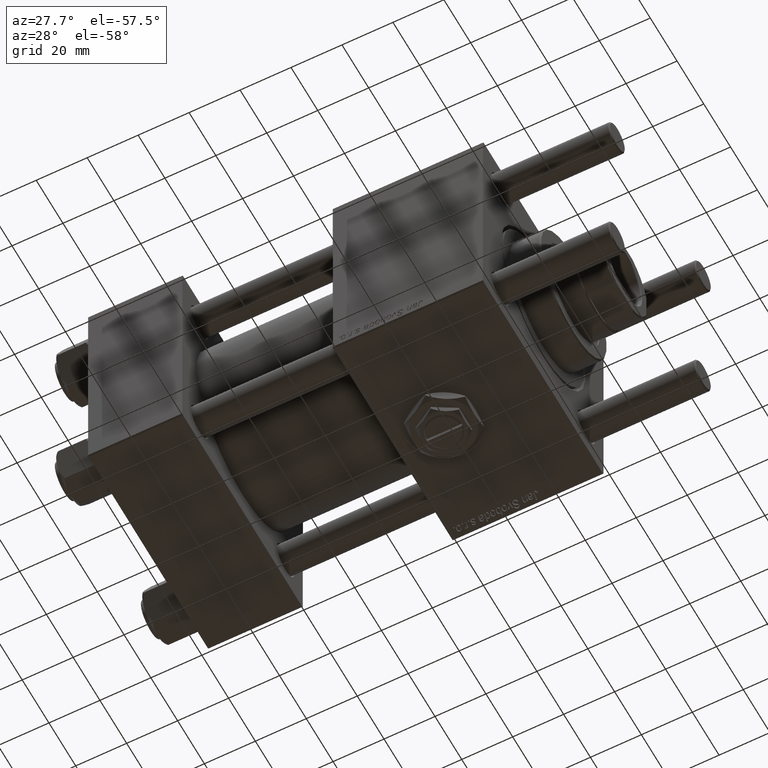
[diagram: clean part render]
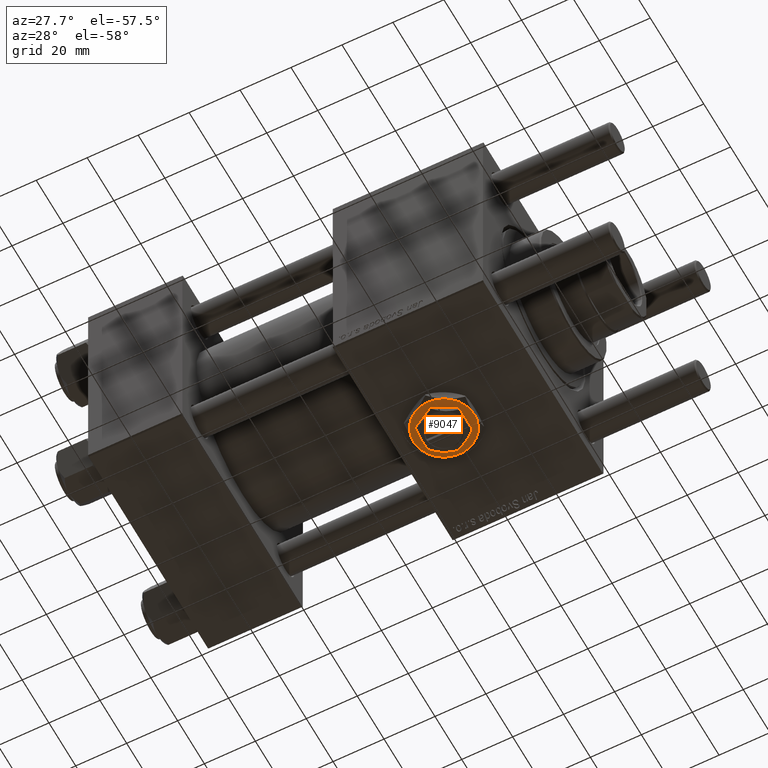
[diagram: same view with one face highlighted and labeled with its STEP entity id]
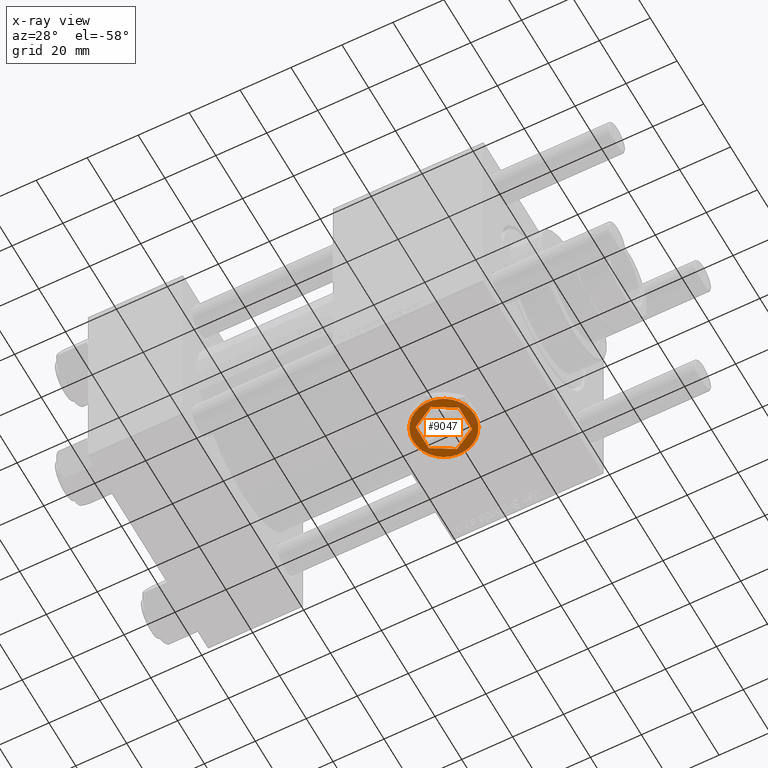
[diagram: x-ray of the same camera — body ghosted, the highlighted face saturated]
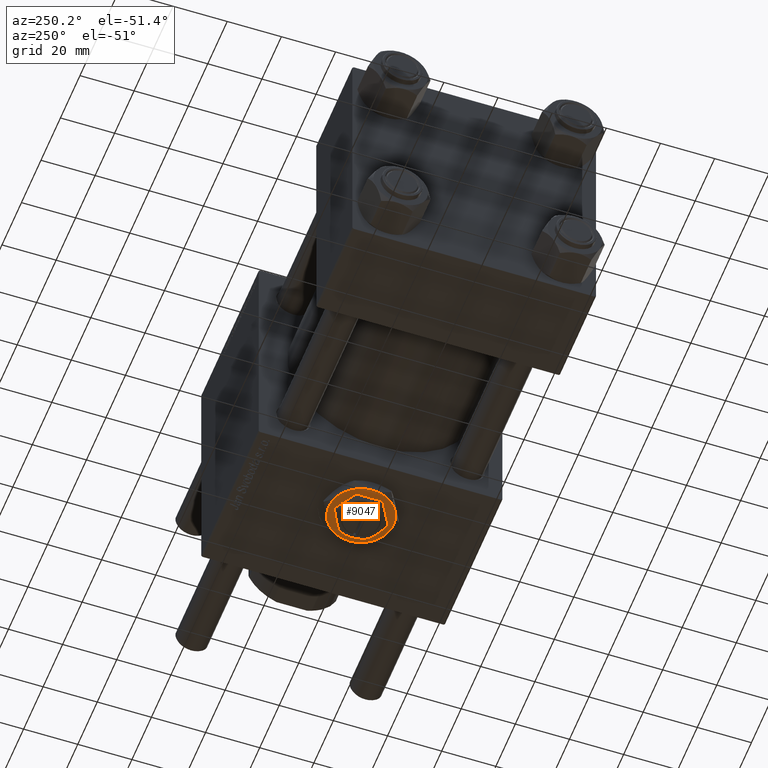
[diagram: same view with one face highlighted and labeled with its STEP entity id]
A machine part, auxiliary view. The second image highlights one B-rep face of the part: STEP entity #9047.
The next image is the same camera in x-ray: the body ghosted, the highlighted face saturated — about 0% of this face is hidden behind the body in this view.
A second angle (auxiliary view) of the same face is appended — the face is thin or edge-on in the first view.
In plain terms, the highlighted planar face has unit normal (0, 0, -1).
Its self-contained STEP definition (entity closure, byte-faithful):
#39 = CIRCLE ( 'NONE', #37755, 12.00000000000000178 ) ;
#335 = CARTESIAN_POINT ( 'NONE',  ( -12.00000000000000178, 0.000000000000000000, 4.299999999999999822 ) ) ;
#987 = CARTESIAN_POINT ( 'NONE',  ( 6.000000000000000888, 10.39230484541326582, 4.299999999999999822 ) ) ;
#1471 = VERTEX_POINT ( 'NONE', #16016 ) ;
#1834 = DIRECTION ( 'NONE',  ( 0.000000000000000000, 0.000000000000000000, 1.000000000000000000 ) ) ;
#2504 = AXIS2_PLACEMENT_3D ( 'NONE', #2785, #52146, #3378 ) ;
#2785 = CARTESIAN_POINT ( 'NONE',  ( 0.000000000000000000, 0.000000000000000000, 4.299999999999999822 ) ) ;
#3378 = DIRECTION ( 'NONE',  ( 1.000000000000000000, 0.000000000000000000, 0.000000000000000000 ) ) ;
#4524 = EDGE_CURVE ( 'NONE', #50308, #1471, #56311, .T. ) ;
#4982 = AXIS2_PLACEMENT_3D ( 'NONE', #43827, #48856, #44981 ) ;
#5232 = DIRECTION ( 'NONE',  ( 0.8660254037844385966, -0.5000000000000001110, 0.000000000000000000 ) ) ;
#5428 = ORIENTED_EDGE ( 'NONE', *, *, #28979, .T. ) ;
#5893 = CIRCLE ( 'NONE', #11545, 12.00000000000000178 ) ;
#6253 = EDGE_CURVE ( 'NONE', #7376, #28438, #30832, .T. ) ;
#6947 = DIRECTION ( 'NONE',  ( 0.000000000000000000, -1.000000000000000000, 0.000000000000000000 ) ) ;
#7047 = LINE ( 'NONE', #28307, #9763 ) ;
#7311 = FACE_BOUND ( 'NONE', #22057, .T. ) ;
#7376 = VERTEX_POINT ( 'NONE', #53824 ) ;
#8069 = VECTOR ( 'NONE', #33265, 1000.000000000000114 ) ;
#9047 = ADVANCED_FACE ( 'NONE', ( #53103, #7311 ), #12602, .T. ) ;
#9763 = VECTOR ( 'NONE', #38364, 1000.000000000000114 ) ;
#10229 = LINE ( 'NONE', #27958, #44225 ) ;
#10478 = DIRECTION ( 'NONE',  ( 0.000000000000000000, 0.000000000000000000, 1.000000000000000000 ) ) ;
#10538 = LINE ( 'NONE', #28551, #8069 ) ;
#11313 = EDGE_CURVE ( 'NONE', #20313, #47778, #14051, .T. ) ;
#11545 = AXIS2_PLACEMENT_3D ( 'NONE', #49724, #33627, #51681 ) ;
#11739 = VECTOR ( 'NONE', #6947, 1000.000000000000000 ) ;
#11792 = ORIENTED_EDGE ( 'NONE', *, *, #13639, .F. ) ;
#12162 = VECTOR ( 'NONE', #17200, 1000.000000000000227 ) ;
#12309 = EDGE_CURVE ( 'NONE', #1471, #49665, #10229, .T. ) ;
#12588 = VERTEX_POINT ( 'NONE', #55382 ) ;
#12602 = PLANE ( 'NONE',  #55456 ) ;
#13070 = VECTOR ( 'NONE', #23231, 1000.000000000000000 ) ;
#13532 = CARTESIAN_POINT ( 'NONE',  ( 8.500000000000000000, -4.907477288111819824, 4.299999999999999822 ) ) ;
#13639 = EDGE_CURVE ( 'NONE', #50897, #50308, #21636, .T. ) ;
#14051 = LINE ( 'NONE', #54855, #13070 ) ;
#15008 = DIRECTION ( 'NONE',  ( 0.000000000000000000, 0.000000000000000000, 1.000000000000000000 ) ) ;
#15345 = CARTESIAN_POINT ( 'NONE',  ( -2.644623992720612091E-15, -9.814954576223637872, 4.299999999999999822 ) ) ;
#15894 = CARTESIAN_POINT ( 'NONE',  ( 0.000000000000000000, 0.000000000000000000, 4.299999999999999822 ) ) ;
#16016 = CARTESIAN_POINT ( 'NONE',  ( -8.500000000000000000, -4.907477288111819824, 4.299999999999999822 ) ) ;
#16150 = ORIENTED_EDGE ( 'NONE', *, *, #4524, .F. ) ;
#16591 = EDGE_CURVE ( 'NONE', #54749, #12588, #39, .T. ) ;
#17200 = DIRECTION ( 'NONE',  ( -0.8660254037844385966, -0.5000000000000000000, 0.000000000000000000 ) ) ;
#17331 = DIRECTION ( 'NONE',  ( 1.000000000000000000, 0.000000000000000000, -0.000000000000000000 ) ) ;
#17992 = EDGE_CURVE ( 'NONE', #28438, #42752, #29309, .T. ) ;
#19361 = DIRECTION ( 'NONE',  ( 1.000000000000000000, 0.000000000000000000, 0.000000000000000000 ) ) ;
#20313 = VERTEX_POINT ( 'NONE', #13532 ) ;
#21636 = LINE ( 'NONE', #57697, #12162 ) ;
#21653 = CARTESIAN_POINT ( 'NONE',  ( 8.499999999999996447, 4.907477288111821601, 4.299999999999999822 ) ) ;
#22057 = EDGE_LOOP ( 'NONE', ( #11792, #48874, #27767, #43030, #54609, #16150 ) ) ;
#23231 = DIRECTION ( 'NONE',  ( -3.534857879381550604E-16, 1.000000000000000000, 0.000000000000000000 ) ) ;
#23755 = CARTESIAN_POINT ( 'NONE',  ( 5.999999999999998224, -10.39230484541326760, 4.299999999999999822 ) ) ;
#24304 = CARTESIAN_POINT ( 'NONE',  ( 0.000000000000000000, 0.000000000000000000, 4.299999999999999822 ) ) ;
#24806 = CIRCLE ( 'NONE', #4982, 12.00000000000000178 ) ;
#27767 = ORIENTED_EDGE ( 'NONE', *, *, #11313, .F. ) ;
#27958 = CARTESIAN_POINT ( 'NONE',  ( -8.500000000000000000, -4.907477288111819824, 4.299999999999999822 ) ) ;
#28307 = CARTESIAN_POINT ( 'NONE',  ( 8.499999999999996447, 4.907477288111821601, 4.299999999999999822 ) ) ;
#28438 = VERTEX_POINT ( 'NONE', #335 ) ;
#28551 = CARTESIAN_POINT ( 'NONE',  ( -2.644623992720612091E-15, -9.814954576223637872, 4.299999999999999822 ) ) ;
#28854 = ORIENTED_EDGE ( 'NONE', *, *, #47949, .T. ) ;
#28979 = EDGE_CURVE ( 'NONE', #12588, #32418, #24806, .T. ) ;
#29309 = CIRCLE ( 'NONE', #39692, 12.00000000000000178 ) ;
#30832 = CIRCLE ( 'NONE', #2504, 12.00000000000000178 ) ;
#31664 = CARTESIAN_POINT ( 'NONE',  ( -8.500000000000000000, 4.907477288111818048, 4.299999999999999822 ) ) ;
#32418 = VERTEX_POINT ( 'NONE', #987 ) ;
#33265 = DIRECTION ( 'NONE',  ( 0.8660254037844388186, 0.4999999999999997224, 0.000000000000000000 ) ) ;
#33627 = DIRECTION ( 'NONE',  ( 0.000000000000000000, 0.000000000000000000, 1.000000000000000000 ) ) ;
#36041 = EDGE_CURVE ( 'NONE', #49665, #20313, #10538, .T. ) ;
#37755 = AXIS2_PLACEMENT_3D ( 'NONE', #24304, #1834, #46476 ) ;
#38025 = AXIS2_PLACEMENT_3D ( 'NONE', #15894, #15008, #38356 ) ;
#38356 = DIRECTION ( 'NONE',  ( 1.000000000000000000, 0.000000000000000000, 0.000000000000000000 ) ) ;
#38364 = DIRECTION ( 'NONE',  ( -0.8660254037844387076, 0.4999999999999998890, 0.000000000000000000 ) ) ;
#39692 = AXIS2_PLACEMENT_3D ( 'NONE', #43090, #10478, #19361 ) ;
#40841 = CIRCLE ( 'NONE', #38025, 12.00000000000000178 ) ;
#42111 = CARTESIAN_POINT ( 'NONE',  ( -8.500000000000000000, 4.907477288111818048, 4.299999999999999822 ) ) ;
#42752 = VERTEX_POINT ( 'NONE', #57480 ) ;
#43030 = ORIENTED_EDGE ( 'NONE', *, *, #36041, .F. ) ;
#43090 = CARTESIAN_POINT ( 'NONE',  ( 0.000000000000000000, 0.000000000000000000, 4.299999999999999822 ) ) ;
#43696 = CARTESIAN_POINT ( 'NONE',  ( 0.000000000000000000, 9.814954576223637872, 4.299999999999999822 ) ) ;
#43827 = CARTESIAN_POINT ( 'NONE',  ( 0.000000000000000000, 0.000000000000000000, 4.299999999999999822 ) ) ;
#43998 = ORIENTED_EDGE ( 'NONE', *, *, #6253, .T. ) ;
#44225 = VECTOR ( 'NONE', #5232, 1000.000000000000114 ) ;
#44981 = DIRECTION ( 'NONE',  ( 1.000000000000000000, 0.000000000000000000, 0.000000000000000000 ) ) ;
#46476 = DIRECTION ( 'NONE',  ( 1.000000000000000000, 0.000000000000000000, 0.000000000000000000 ) ) ;
#47706 = ORIENTED_EDGE ( 'NONE', *, *, #55247, .T. ) ;
#47778 = VERTEX_POINT ( 'NONE', #21653 ) ;
#47949 = EDGE_CURVE ( 'NONE', #32418, #7376, #5893, .T. ) ;
#48308 = ORIENTED_EDGE ( 'NONE', *, *, #16591, .T. ) ;
#48856 = DIRECTION ( 'NONE',  ( 0.000000000000000000, 0.000000000000000000, 1.000000000000000000 ) ) ;
#48874 = ORIENTED_EDGE ( 'NONE', *, *, #56111, .F. ) ;
#49665 = VERTEX_POINT ( 'NONE', #15345 ) ;
#49724 = CARTESIAN_POINT ( 'NONE',  ( 0.000000000000000000, 0.000000000000000000, 4.299999999999999822 ) ) ;
#50308 = VERTEX_POINT ( 'NONE', #31664 ) ;
#50897 = VERTEX_POINT ( 'NONE', #43696 ) ;
#51681 = DIRECTION ( 'NONE',  ( 1.000000000000000000, 0.000000000000000000, 0.000000000000000000 ) ) ;
#52146 = DIRECTION ( 'NONE',  ( 0.000000000000000000, 0.000000000000000000, 1.000000000000000000 ) ) ;
#52497 = EDGE_LOOP ( 'NONE', ( #48308, #5428, #28854, #43998, #56285, #47706 ) ) ;
#53103 = FACE_OUTER_BOUND ( 'NONE', #52497, .T. ) ;
#53405 = DIRECTION ( 'NONE',  ( 0.000000000000000000, 0.000000000000000000, 1.000000000000000000 ) ) ;
#53824 = CARTESIAN_POINT ( 'NONE',  ( -6.000000000000001776, 10.39230484541326405, 4.299999999999999822 ) ) ;
#54609 = ORIENTED_EDGE ( 'NONE', *, *, #12309, .F. ) ;
#54749 = VERTEX_POINT ( 'NONE', #23755 ) ;
#54855 = CARTESIAN_POINT ( 'NONE',  ( 8.500000000000000000, -4.907477288111819824, 4.299999999999999822 ) ) ;
#55247 = EDGE_CURVE ( 'NONE', #42752, #54749, #40841, .T. ) ;
#55382 = CARTESIAN_POINT ( 'NONE',  ( 11.99999999999999645, 3.004629197474318063E-15, 4.299999999999999822 ) ) ;
#55456 = AXIS2_PLACEMENT_3D ( 'NONE', #57828, #53405, #17331 ) ;
#56111 = EDGE_CURVE ( 'NONE', #47778, #50897, #7047, .T. ) ;
#56285 = ORIENTED_EDGE ( 'NONE', *, *, #17992, .T. ) ;
#56311 = LINE ( 'NONE', #42111, #11739 ) ;
#57480 = CARTESIAN_POINT ( 'NONE',  ( -6.000000000000000000, -10.39230484541326582, 4.299999999999999822 ) ) ;
#57697 = CARTESIAN_POINT ( 'NONE',  ( 0.000000000000000000, 9.814954576223637872, 4.299999999999999822 ) ) ;
#57828 = CARTESIAN_POINT ( 'NONE',  ( 0.000000000000000000, 0.000000000000000000, 4.299999999999999822 ) ) ;